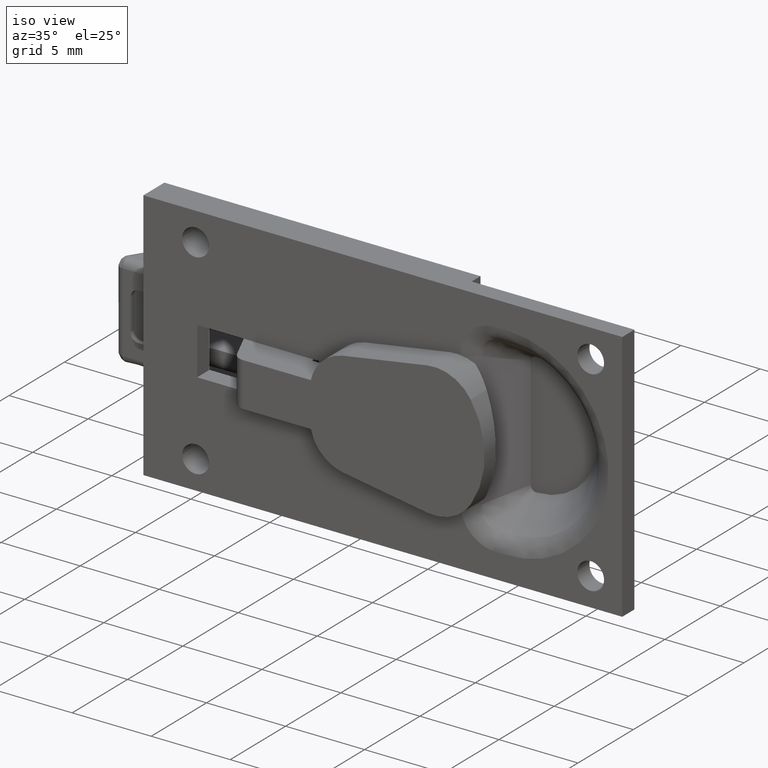
[diagram: clean part render]
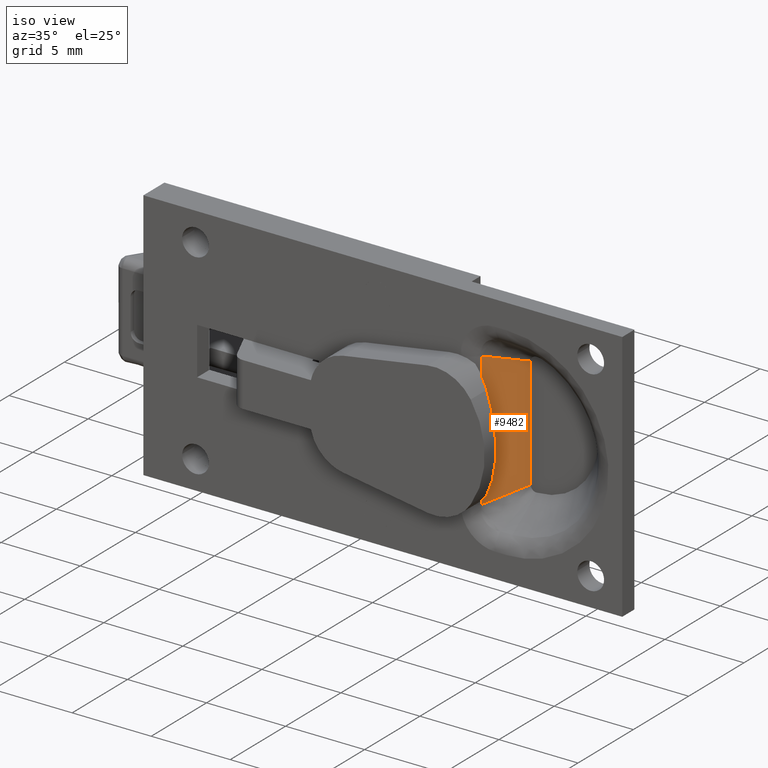
[diagram: same view with one face highlighted and labeled with its STEP entity id]
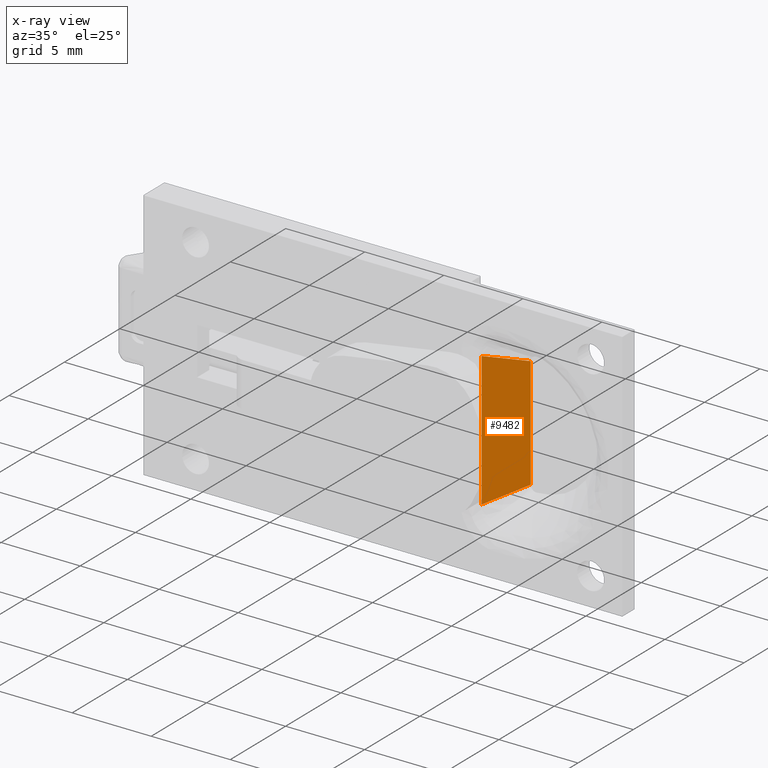
[diagram: x-ray of the same camera — body ghosted, the highlighted face saturated]
A machine part, iso view. The second image highlights one B-rep face of the part: STEP entity #9482.
The next image is the same camera in x-ray: the body ghosted, the highlighted face saturated — about 0% of this face is hidden behind the body in this view.
In plain terms, the highlighted face is a freeform B-spline surface patch.
Its self-contained STEP definition (entity closure, byte-faithful):
#8758=CARTESIAN_POINT('',(13.047888730952740,0.502474591197042,-4.244793480275925));
#8759=VERTEX_POINT('',#8758);
#8931=CARTESIAN_POINT('',(13.047888730952740,0.502474591197042,4.244793480275925));
#8932=VERTEX_POINT('',#8931);
#8954=CARTESIAN_POINT('',(13.047888730952740,0.502474591197042,4.244793480275925));
#8955=CARTESIAN_POINT('',(13.047888730952740,0.502474591197042,-4.244793480275925));
#8956=QUASI_UNIFORM_CURVE('',1,(#8954,#8955),.UNSPECIFIED.,.F.,.U.);
#8957=EDGE_CURVE('',#8932,#8759,#8956,.T.);
#9225=CARTESIAN_POINT('',(13.832786490031150,1.601237295598420,3.888158796907012));
#9226=VERTEX_POINT('',#9225);
#9227=CARTESIAN_POINT('',(13.832786490031150,1.601237295598419,3.888158796907011));
#9228=CARTESIAN_POINT('',(13.571153903671640,1.234983060797894,4.007037024696671));
#9229=CARTESIAN_POINT('',(13.309521317312120,0.868728825997369,4.125915252486331));
#9230=CARTESIAN_POINT('',(13.047888730952740,0.502474591197042,4.244793480275925));
#9231=B_SPLINE_CURVE_WITH_KNOTS('',3,(#9227,#9228,#9229,#9230),.UNSPECIFIED.,.F.,.U.,(4,4),(0.185551234906850,0.287552726240631),.UNSPECIFIED.);
#9232=EDGE_CURVE('',#9226,#8932,#9231,.T.);
#9234=CARTESIAN_POINT('',(14.617684249109720,2.700000000000000,3.531524113538030));
#9235=VERTEX_POINT('',#9234);
#9236=CARTESIAN_POINT('',(14.617684249109701,2.699999999999994,3.531524113538035));
#9237=CARTESIAN_POINT('',(14.583434293880959,2.652054171390482,3.547086295742180));
#9238=CARTESIAN_POINT('',(14.549184338652211,2.604108342780971,3.562648477946325));
#9239=CARTESIAN_POINT('',(14.514934383423460,2.556162514171460,3.578210660150470));
#9240=CARTESIAN_POINT('',(14.287551752292689,2.237854107980447,3.681526705735984));
#9241=CARTESIAN_POINT('',(14.060169121161920,1.919545701789433,3.784842751321497));
#9242=CARTESIAN_POINT('',(13.832786490031150,1.601237295598419,3.888158796907011));
#9243=B_SPLINE_CURVE_WITH_KNOTS('',3,(#9236,#9237,#9238,#9239,#9240,#9241,#9242),.UNSPECIFIED.,.F.,.U.,(4,3,4),(0.083549743573070,0.096902615858813,0.185551234906850),.UNSPECIFIED.);
#9244=EDGE_CURVE('',#9235,#9226,#9243,.T.);
#9299=CARTESIAN_POINT('',(13.832786490031211,1.601237295598500,-3.888158796906987));
#9300=VERTEX_POINT('',#9299);
#9301=CARTESIAN_POINT('',(14.617684249109720,2.700000000000000,-3.531524113538025));
#9302=VERTEX_POINT('',#9301);
#9303=CARTESIAN_POINT('',(13.832786490031211,1.601237295598499,-3.888158796906987));
#9304=CARTESIAN_POINT('',(14.060169121161961,1.919545701789486,-3.784842751321481));
#9305=CARTESIAN_POINT('',(14.287551752292710,2.237854107980473,-3.681526705735976));
#9306=CARTESIAN_POINT('',(14.514934383423460,2.556162514171460,-3.578210660150470));
#9307=CARTESIAN_POINT('',(14.549184338652200,2.604108342780960,-3.562648477946329));
#9308=CARTESIAN_POINT('',(14.583434293880940,2.652054171390460,-3.547086295742187));
#9309=CARTESIAN_POINT('',(14.617684249109720,2.700000000000000,-3.531524113538025));
#9310=B_SPLINE_CURVE_WITH_KNOTS('',3,(#9303,#9304,#9305,#9306,#9307,#9308,#9309),.UNSPECIFIED.,.F.,.U.,(4,3,4),(0.185551234906843,0.274199853954874,0.287552726240614),.UNSPECIFIED.);
#9311=EDGE_CURVE('',#9300,#9302,#9310,.T.);
#9313=CARTESIAN_POINT('',(13.047888730952749,0.502474591197036,-4.244793480275928));
#9314=CARTESIAN_POINT('',(13.309521317312230,0.868728825997524,-4.125915252486280));
#9315=CARTESIAN_POINT('',(13.571153903671719,1.234983060798012,-4.007037024696634));
#9316=CARTESIAN_POINT('',(13.832786490031211,1.601237295598499,-3.888158796906987));
#9317=B_SPLINE_CURVE_WITH_KNOTS('',3,(#9313,#9314,#9315,#9316),.UNSPECIFIED.,.F.,.U.,(4,4),(0.083549743573073,0.185551234906843),.UNSPECIFIED.);
#9318=EDGE_CURVE('',#8759,#9300,#9317,.T.);
#9371=CARTESIAN_POINT('',(14.617684249109720,2.700000000000000,-3.531524113538025));
#9372=CARTESIAN_POINT('',(14.617684249109720,2.700000000000000,3.531524113538030));
#9373=QUASI_UNIFORM_CURVE('',1,(#9371,#9372),.UNSPECIFIED.,.F.,.U.);
#9374=EDGE_CURVE('',#9302,#9235,#9373,.T.);
#9469=CARTESIAN_POINT('',(14.696095605879680,2.809766493054461,-4.668848252806855));
#9470=CARTESIAN_POINT('',(12.969477402252920,0.392708137437390,-4.668848252806855));
#9471=CARTESIAN_POINT('',(14.696095605879680,2.809766493054461,4.668848556418143));
#9472=CARTESIAN_POINT('',(12.969477402252920,0.392708137437390,4.668848556418143));
#9473=B_SPLINE_SURFACE_WITH_KNOTS('',1,1,((#9469,#9471),(#9470,#9472)),.UNSPECIFIED.,.F.,.F.,.U.,(2,2),(2,2),(0.0,2.970417734183792),(0.0,9.337696809224998),.UNSPECIFIED.);
#9474=ORIENTED_EDGE('',*,*,#9244,.T.);
#9475=ORIENTED_EDGE('',*,*,#9232,.T.);
#9476=ORIENTED_EDGE('',*,*,#8957,.T.);
#9477=ORIENTED_EDGE('',*,*,#9318,.T.);
#9478=ORIENTED_EDGE('',*,*,#9311,.T.);
#9479=ORIENTED_EDGE('',*,*,#9374,.T.);
#9480=EDGE_LOOP('',(#9474,#9475,#9476,#9477,#9478,#9479));
#9481=FACE_OUTER_BOUND('',#9480,.T.);
#9482=ADVANCED_FACE('',(#9481),#9473,.F.);